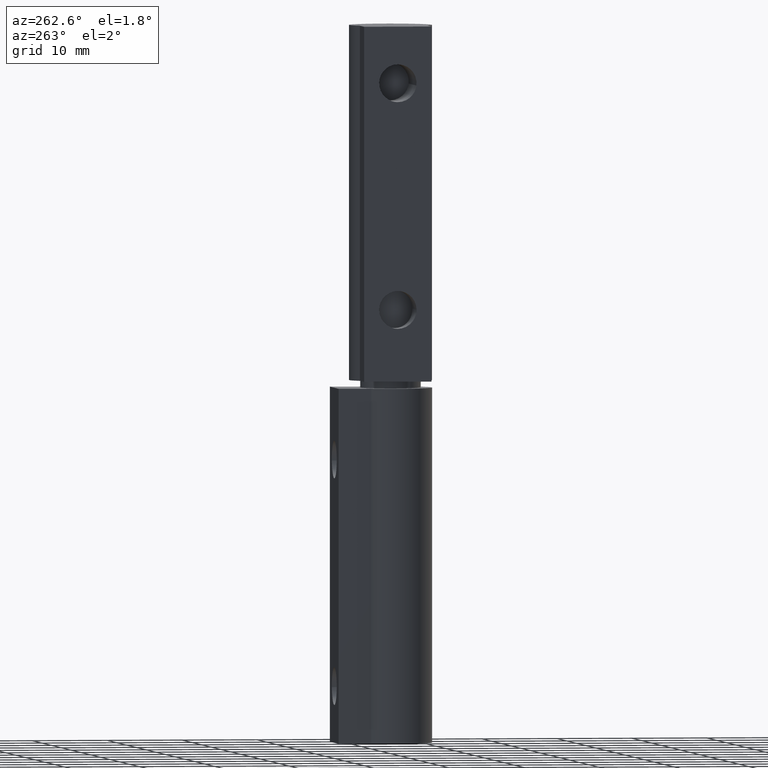
[diagram: clean part render]
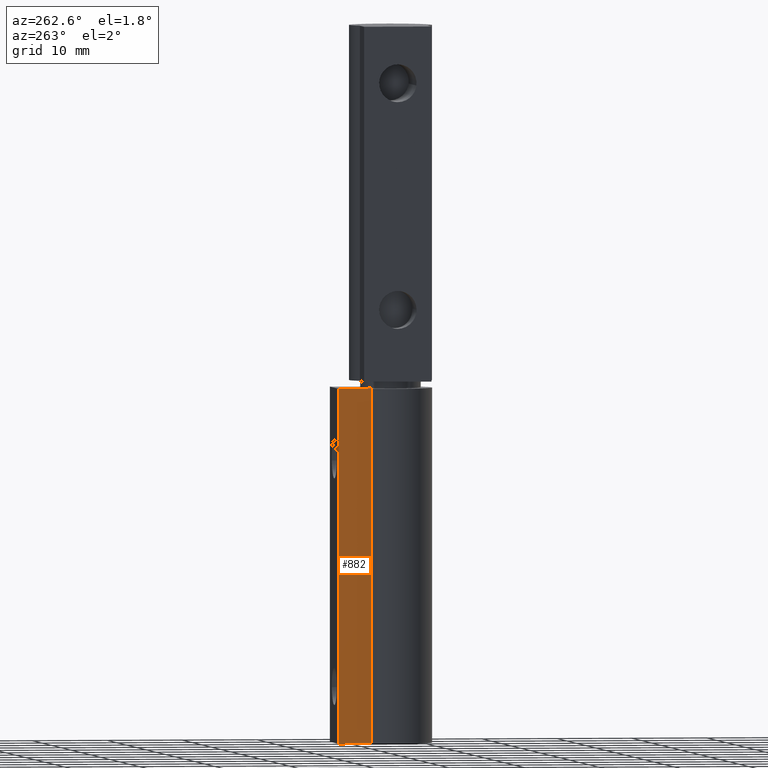
[diagram: same view with one face highlighted and labeled with its STEP entity id]
A machine part, auxiliary view. The second image highlights one B-rep face of the part: STEP entity #882.
In plain terms, the highlighted face is a freeform B-spline surface patch.
Its self-contained STEP definition (entity closure, byte-faithful):
#821=CARTESIAN_POINT('',(-4.500000213738630,3.162277810368375,0.0));
#822=VERTEX_POINT('',#821);
#840=CARTESIAN_POINT('',(-4.500000213738530,7.500000356230890,0.0));
#841=VERTEX_POINT('',#840);
#842=CARTESIAN_POINT('',(-4.500000213738630,3.162277810368375,0.0));
#843=CARTESIAN_POINT('',(-4.500000213738530,7.500000356230890,0.0));
#844=QUASI_UNIFORM_CURVE('',1,(#842,#843),.UNSPECIFIED.,.F.,.U.);
#845=EDGE_CURVE('',#822,#841,#844,.T.);
#855=CARTESIAN_POINT('',(-4.500000213738590,7.716669711147683,-2.347650020412206));
#856=CARTESIAN_POINT('',(-4.500000213738590,2.945608455451583,-2.347650020412206));
#857=CARTESIAN_POINT('',(-4.500000213738590,7.716669711147683,49.347653513429407));
#858=CARTESIAN_POINT('',(-4.500000213738590,2.945608455451583,49.347653513429407));
#859=B_SPLINE_SURFACE_WITH_KNOTS('',1,1,((#855,#857),(#856,#858)),.UNSPECIFIED.,.F.,.F.,.U.,(2,2),(2,2),(0.0,4.771061255696099),(0.0,51.695303533841610),.UNSPECIFIED.);
#860=ORIENTED_EDGE('',*,*,#845,.F.);
#861=CARTESIAN_POINT('',(-4.500000213738630,3.162277810368375,47.000002232378897));
#862=VERTEX_POINT('',#861);
#863=CARTESIAN_POINT('',(-4.500000213738630,3.162277810368375,47.000002232378897));
#864=CARTESIAN_POINT('',(-4.500000213738630,3.162277810368375,0.0));
#865=QUASI_UNIFORM_CURVE('',1,(#863,#864),.UNSPECIFIED.,.F.,.U.);
#866=EDGE_CURVE('',#862,#822,#865,.T.);
#867=ORIENTED_EDGE('',*,*,#866,.F.);
#868=CARTESIAN_POINT('',(-4.500000213738530,7.500000356230890,47.000002232378897));
#869=VERTEX_POINT('',#868);
#870=CARTESIAN_POINT('',(-4.500000213738630,3.162277810368375,47.000002232378897));
#871=CARTESIAN_POINT('',(-4.500000213738530,7.500000356230890,47.000002232378897));
#872=QUASI_UNIFORM_CURVE('',1,(#870,#871),.UNSPECIFIED.,.F.,.U.);
#873=EDGE_CURVE('',#862,#869,#872,.T.);
#874=ORIENTED_EDGE('',*,*,#873,.T.);
#875=CARTESIAN_POINT('',(-4.500000213738530,7.500000356230890,47.000002232378897));
#876=CARTESIAN_POINT('',(-4.500000213738530,7.500000356230890,0.0));
#877=QUASI_UNIFORM_CURVE('',1,(#875,#876),.UNSPECIFIED.,.F.,.U.);
#878=EDGE_CURVE('',#869,#841,#877,.T.);
#879=ORIENTED_EDGE('',*,*,#878,.T.);
#880=EDGE_LOOP('',(#860,#867,#874,#879));
#881=FACE_OUTER_BOUND('',#880,.T.);
#882=ADVANCED_FACE('',(#881),#859,.T.);